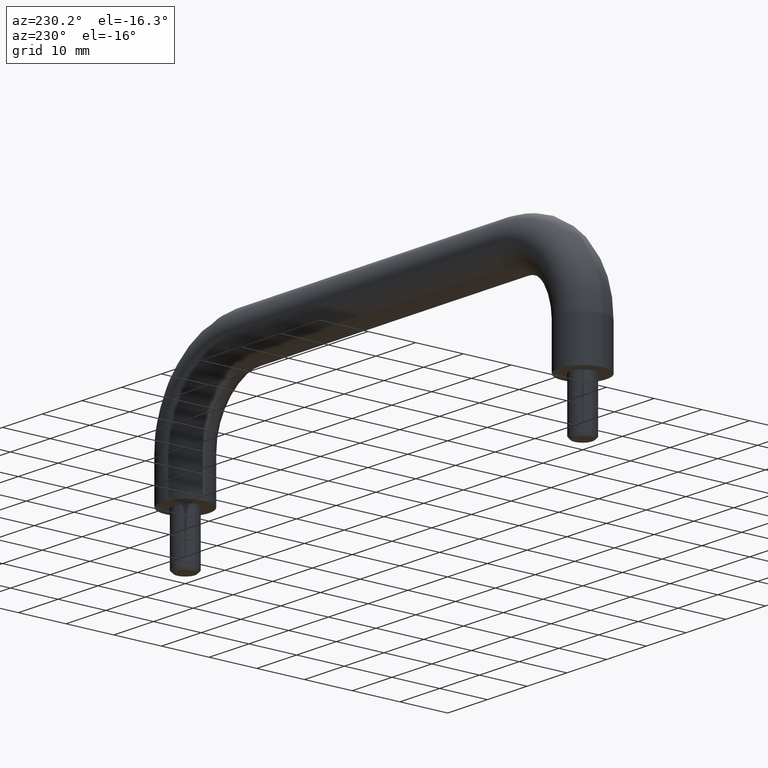
[diagram: clean part render]
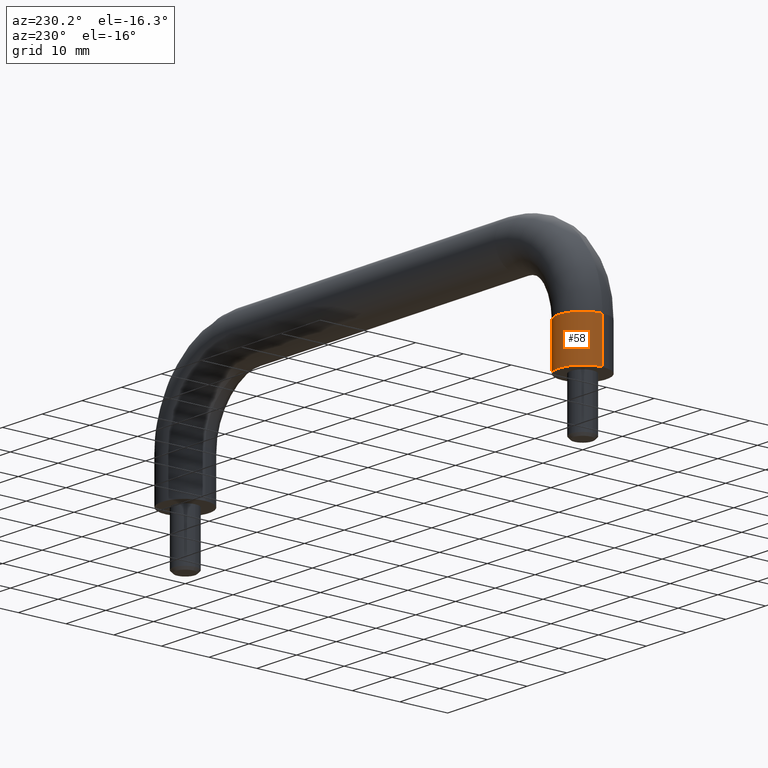
[diagram: same view with one face highlighted and labeled with its STEP entity id]
A machine part, auxiliary view. The second image highlights one B-rep face of the part: STEP entity #58.
In plain terms, the highlighted cylindrical surface (edge-blend (fillet) strip) has radius 5 mm, axis along (0, 0, -1).
Its self-contained STEP definition (entity closure, byte-faithful):
#58=ADVANCED_FACE('',(#247),#246,.T.);
#246=CYLINDRICAL_SURFACE('',#593,5.00000000000E+00);
#247=FACE_OUTER_BOUND('',#594,.T.);
#590=CARTESIAN_POINT('',(-4.99999999997E+01,-9.33697563710E-11,-1.55000000000E+01));
#591=DIRECTION('',(1.38243194669E-11,0.00000000000E+00,-1.00000000000E+00));
#592=DIRECTION('',(-1.00000000000E+00,7.65713739785E-16,-1.38243194669E-11));
#593=AXIS2_PLACEMENT_3D('',#590,#591,#592);
#594=EDGE_LOOP('',(#700,#701,#702,#703));
#700=ORIENTED_EDGE('',*,*,#745,.T.);
#701=ORIENTED_EDGE('',*,*,#762,.F.);
#702=ORIENTED_EDGE('',*,*,#741,.T.);
#703=ORIENTED_EDGE('',*,*,#763,.T.);
#741=EDGE_CURVE('',#853,#852,#886,.T.);
#745=EDGE_CURVE('',#907,#906,#914,.T.);
#762=EDGE_CURVE('',#853,#906,#1022,.T.);
#763=EDGE_CURVE('',#852,#907,#1028,.T.);
#852=VERTEX_POINT('',#1135);
#853=VERTEX_POINT('',#1136);
#886=CIRCLE('',#1167,5.00000000000E+00);
#906=VERTEX_POINT('',#1178);
#907=VERTEX_POINT('',#1179);
#914=CIRCLE('',#1187,5.00000000000E+00);
#1022=(BOUNDED_CURVE() B_SPLINE_CURVE(1,(#1238,#1239),.UNSPECIFIED.,.F.,.F.) B_SPLINE_CURVE_WITH_KNOTS((2,2),(8.33333343261E-02,9.16666664274E-01),.UNSPECIFIED.) CURVE() GEOMETRIC_REPRESENTATION_ITEM() RATIONAL_B_SPLINE_CURVE((1.00000000000E+00,1.00000000000E+00)) REPRESENTATION_ITEM('') );
#1028=(BOUNDED_CURVE() B_SPLINE_CURVE(1,(#1240,#1241),.UNSPECIFIED.,.F.,.F.) B_SPLINE_CURVE_WITH_KNOTS((2,2),(8.33333333333E-02,9.16666666667E-01),.UNSPECIFIED.) CURVE() GEOMETRIC_REPRESENTATION_ITEM() RATIONAL_B_SPLINE_CURVE((7.50000000000E-01,7.50000000000E-01)) REPRESENTATION_ITEM('') );
#1135=CARTESIAN_POINT('',(-4.49999999998E+01,-9.33650194194E-11,-1.10000000006E+01));
#1136=CARTESIAN_POINT('',(-5.49999999998E+01,-9.33654195623E-11,-1.10000000008E+01));
#1164=CARTESIAN_POINT('',(-4.99999999998E+01,-9.33654195623E-11,-1.10000000007E+01));
#1165=DIRECTION('',(1.38243194669E-11,0.00000000000E+00,-1.00000000000E+00));
#1166=DIRECTION('',(1.00000000000E+00,-0.00000000000E+00,1.38243194669E-11));
#1167=AXIS2_PLACEMENT_3D('',#1164,#1165,#1166);
#1178=CARTESIAN_POINT('',(-5.49999999996E+01,-9.33697563710E-11,-2.00000000008E+01));
#1179=CARTESIAN_POINT('',(-4.49999999996E+01,-9.33706647337E-11,-2.00000000006E+01));
#1184=CARTESIAN_POINT('',(-4.99999999996E+01,-9.33697563710E-11,-2.00000000007E+01));
#1185=DIRECTION('',(-1.38243194669E-11,2.87237038179E-39,1.00000000000E+00));
#1186=DIRECTION('',(1.00000000000E+00,-5.92118999992E-17,1.38243194669E-11));
#1187=AXIS2_PLACEMENT_3D('',#1184,#1185,#1186);
#1238=CARTESIAN_POINT('',(-5.49999999998E+01,-9.33659278023E-11,-1.10000000115E+01));
#1239=CARTESIAN_POINT('',(-5.49999999997E+01,-9.33659278023E-11,-1.99999999749E+01));
#1240=CARTESIAN_POINT('',(-4.49999999998E+01,-9.33736298158E-11,-1.10000000006E+01));
#1241=CARTESIAN_POINT('',(-4.49999999997E+01,-9.33738765320E-11,-2.00000000006E+01));